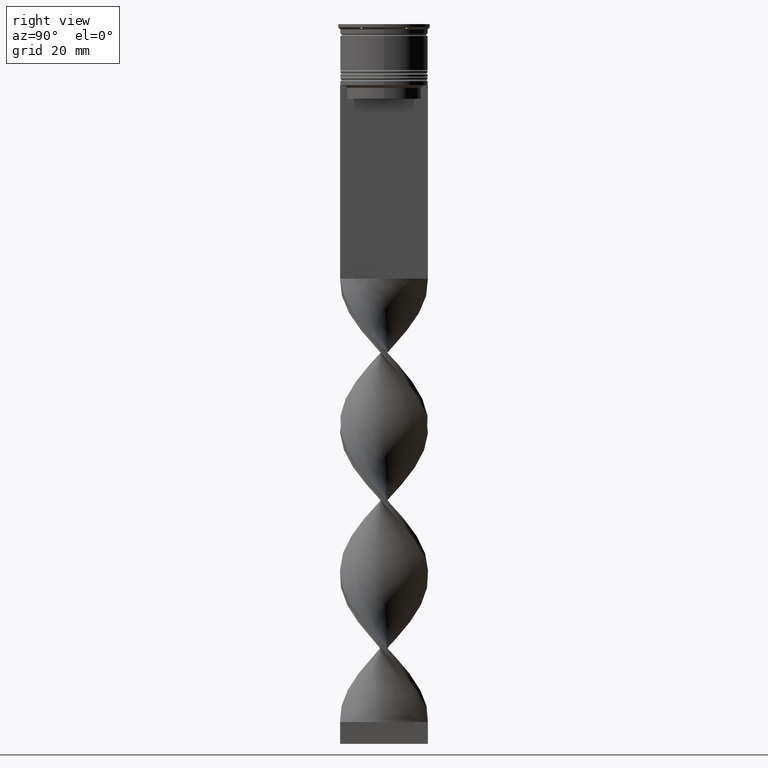
[diagram: clean part render]
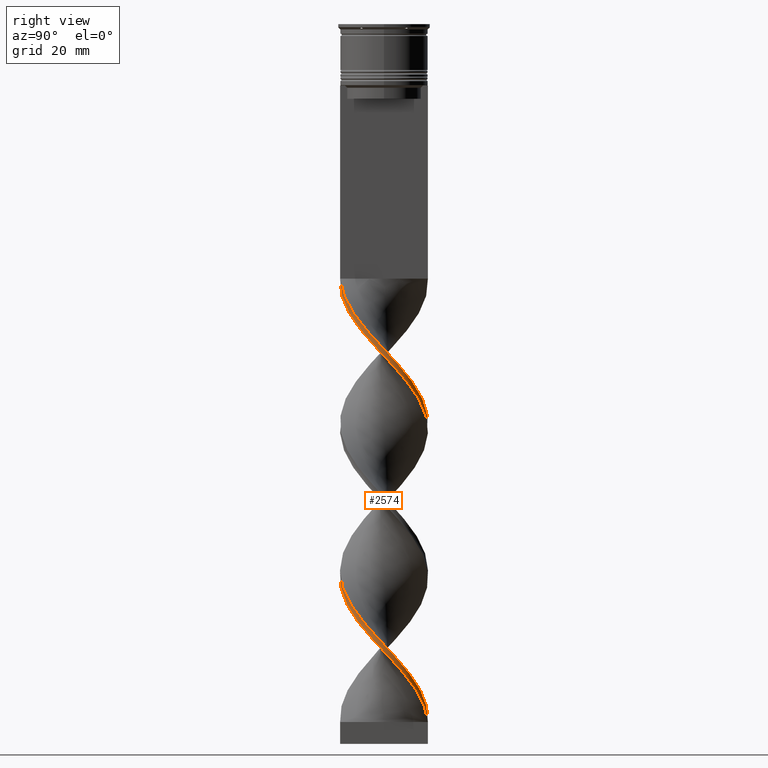
[diagram: same view with one face highlighted and labeled with its STEP entity id]
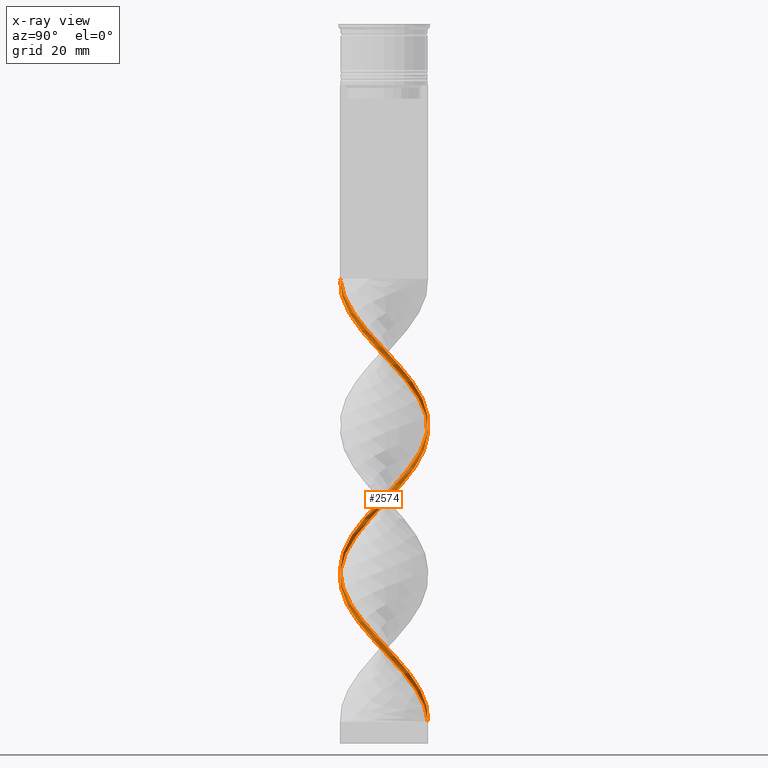
[diagram: x-ray of the same camera — body ghosted, the highlighted face saturated]
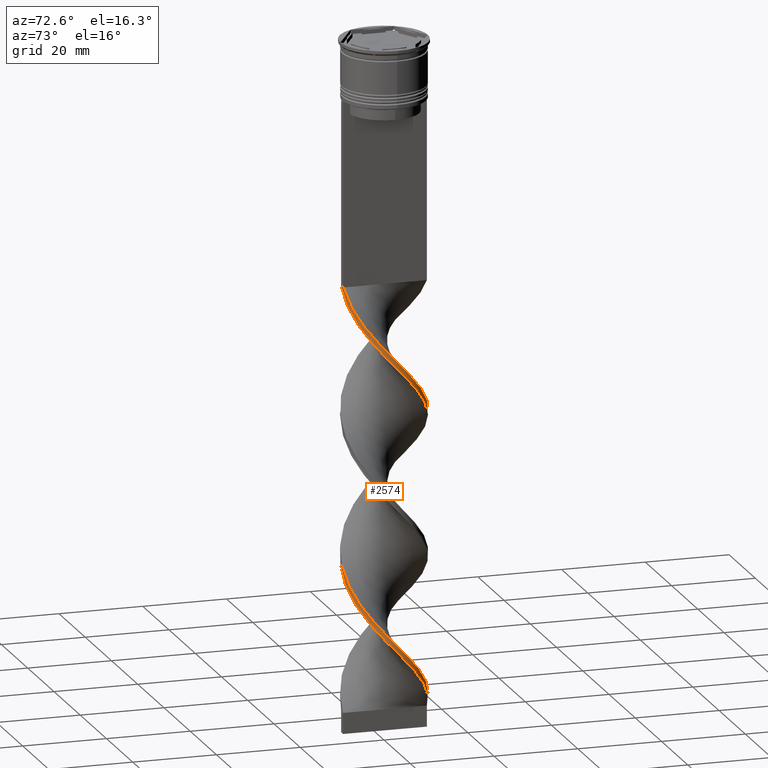
[diagram: same view with one face highlighted and labeled with its STEP entity id]
A machine part, right view. The second image highlights one B-rep face of the part: STEP entity #2574.
The next image is the same camera in x-ray: the body ghosted, the highlighted face saturated — about 1% of this face is hidden behind the body in this view.
A second angle (auxiliary view) of the same face is appended — the face is thin or edge-on in the first view.
In plain terms, the highlighted face is a freeform B-spline surface patch.
Its self-contained STEP definition (entity closure, byte-faithful):
#4 = CARTESIAN_POINT ( 'NONE',  ( -7.288592354231109738, 6.967770475720659107, -99.52222222222223991 ) ) ;
#13 = CARTESIAN_POINT ( 'NONE',  ( 9.992147806631789919, -1.352917631973299173, -72.58888888888890278 ) ) ;
#15 = CARTESIAN_POINT ( 'NONE',  ( 5.271089777143523669, -8.531008882968833973, -132.0666666666666629 ) ) ;
#24 = CARTESIAN_POINT ( 'NONE',  ( -10.02361530113348032, 0.2993932111503379012, -107.3777777777777942 ) ) ;
#35 = CARTESIAN_POINT ( 'NONE',  ( 5.680638183180777290, -8.330891533339590538, -130.9444444444444287 ) ) ;
#43 = CARTESIAN_POINT ( 'NONE',  ( -9.678562416828830450, -2.828220898732835220, -110.7444444444444542 ) ) ;
#52 = CARTESIAN_POINT ( 'NONE',  ( 0.3010423526567679309, 10.07882817644926376, -90.54444444444445139 ) ) ;
#54 = CARTESIAN_POINT ( 'NONE',  ( -8.578000064855068274, -5.300124413240421717, -115.2333333333333343 ) ) ;
#59 = CARTESIAN_POINT ( 'NONE',  ( 9.278802417170330941, 3.803462330970840632, -78.20000000000000284 ) ) ;
#73 = CARTESIAN_POINT ( 'NONE',  ( -1.345506207627245487, -9.937409775451381932, -123.0888888888888886 ) ) ;
#75 = CARTESIAN_POINT ( 'NONE',  ( -6.167734941832652140, 7.976995022925438050, -99.52222222222223991 ) ) ;
#85 = CARTESIAN_POINT ( 'NONE',  ( 7.933296209543089006, -6.133947444480539524, -66.97777777777777430 ) ) ;
#98 = CARTESIAN_POINT ( 'NONE',  ( -5.271089777143526334, -8.531008882968833973, -118.6000000000000085 ) ) ;
#100 = CARTESIAN_POINT ( 'NONE',  ( 10.05508279563516716, -0.7541312096726379144, -142.1666666666666856 ) ) ;
#120 = CARTESIAN_POINT ( 'NONE',  ( -3.382207337526049962, 9.440507058732864110, -96.15555555555556566 ) ) ;
#122 = CARTESIAN_POINT ( 'NONE',  ( 9.992147806631788143, -1.352917631973299173, -139.9222222222222172 ) ) ;
#125 = EDGE_CURVE ( 'NONE', #1130, #3033, #1598, .T. ) ;
#141 = CARTESIAN_POINT ( 'NONE',  ( -9.678562416828825121, 2.828220898732847211, -106.2555555555555742 ) ) ;
#167 = CARTESIAN_POINT ( 'NONE',  ( 0.7500000000000011102, 10.00000000000000533, -91.66666666666667140 ) ) ;
#171 = CARTESIAN_POINT ( 'NONE',  ( 2.812727608727948247, -9.625542239224740726, -127.5777777777777828 ) ) ;
#186 = CARTESIAN_POINT ( 'NONE',  ( -0.7499999999999988898, 10.00000000000000533, -159.0000000000000000 ) ) ;
#199 = CARTESIAN_POINT ( 'NONE',  ( 1.345506207627239936, -9.937409775451381932, -60.24444444444444713 ) ) ;
#218 = CARTESIAN_POINT ( 'NONE',  ( 10.05508279563516716, -0.7541312096726379144, -142.1666666666666856 ) ) ;
#222 = ORIENTED_EDGE ( 'NONE', *, *, #567, .T. ) ;
#224 = CARTESIAN_POINT ( 'NONE',  ( 0.7500000000000001110, -10.00000000000000533, -58.00000000000000000 ) ) ;
#251 = CARTESIAN_POINT ( 'NONE',  ( 5.271089777143525446, 8.531008882968833973, -152.2666666666666799 ) ) ;
#255 = CARTESIAN_POINT ( 'NONE',  ( 8.879042417511833207, -4.778703763208840272, -137.6777777777777487 ) ) ;
#266 = CARTESIAN_POINT ( 'NONE',  ( 7.691465658176951159, 6.520334342467823951, -148.8999999999999773 ) ) ;
#269 = ORIENTED_EDGE ( 'NONE', *, *, #2638, .T. ) ;
#271 = CARTESIAN_POINT ( 'NONE',  ( 9.742327908732752562, 2.376877556528110169, -145.5333333333333599 ) ) ;
#287 = CARTESIAN_POINT ( 'NONE',  ( 3.382207337526056179, 9.440507058732862333, -154.5111111111111200 ) ) ;
#296 = CARTESIAN_POINT ( 'NONE',  ( 10.02361530113347854, 0.2993932111503289084, -75.95555555555554861 ) ) ;
#299 = CARTESIAN_POINT ( 'NONE',  ( -9.992147806631788143, 1.352917631973302282, -106.2555555555555742 ) ) ;
#301 = CARTESIAN_POINT ( 'NONE',  ( 7.288592354231114179, 6.967770475720654666, -151.1444444444444457 ) ) ;
#311 = CARTESIAN_POINT ( 'NONE',  ( -6.929600300004805646, -7.248664682696627892, -116.3555555555555685 ) ) ;
#315 = CARTESIAN_POINT ( 'NONE',  ( 2.389970062597715383, -9.795991374453498324, -128.7000000000000171 ) ) ;
#322 = CARTESIAN_POINT ( 'NONE',  ( -6.484615268705943514, 7.649331004530123934, -98.40000000000001990 ) ) ;
#329 = CARTESIAN_POINT ( 'NONE',  ( 2.389970062597715383, -9.795991374453498324, -61.36666666666666003 ) ) ;
#332 = CARTESIAN_POINT ( 'NONE',  ( -9.278802417170330941, -3.803462330970838856, -111.8666666666666742 ) ) ;
#353 = CARTESIAN_POINT ( 'NONE',  ( -9.992147806631789919, 1.352917631973302282, -106.2555555555555742 ) ) ;
#356 = CARTESIAN_POINT ( 'NONE',  ( -9.742327908732752562, -2.376877556528108837, -111.8666666666666742 ) ) ;
#363 = CARTESIAN_POINT ( 'NONE',  ( 8.879042417511834984, 4.778703763208838495, -79.32222222222222285 ) ) ;
#374 = CARTESIAN_POINT ( 'NONE',  ( -2.389970062597717604, -9.795991374453498324, -121.9666666666666544 ) ) ;
#377 = CARTESIAN_POINT ( 'NONE',  ( -8.879042417511829655, 4.778703763208845601, -104.0111111111111057 ) ) ;
#396 = CARTESIAN_POINT ( 'NONE',  ( 2.389970062597715827, 9.795991374453498324, -88.29999999999998295 ) ) ;
#421 = CARTESIAN_POINT ( 'NONE',  ( 5.680638183180779954, 8.330891533339588761, -86.05555555555557135 ) ) ;
#438 = CARTESIAN_POINT ( 'NONE',  ( -9.278802417170329164, 3.803462330970842409, -105.1333333333333400 ) ) ;
#460 = CARTESIAN_POINT ( 'NONE',  ( -4.374444612454388981, 9.085022743012231672, -97.27777777777778567 ) ) ;
#478 = VERTEX_POINT ( 'NONE', #3080 ) ;
#480 = CARTESIAN_POINT ( 'NONE',  ( 4.374444612454393422, 9.085022743012228119, -153.3888888888889142 ) ) ;
#484 = CARTESIAN_POINT ( 'NONE',  ( -6.929600300004805646, -7.248664682696627892, -116.3555555555555685 ) ) ;
#498 = CARTESIAN_POINT ( 'NONE',  ( 7.691465658176951159, -6.520334342467825728, -135.4333333333333371 ) ) ;
#500 = CARTESIAN_POINT ( 'NONE',  ( 9.678562416828825121, -2.828220898732843658, -72.58888888888890278 ) ) ;
#512 = CARTESIAN_POINT ( 'NONE',  ( 9.492508010833715204, 3.400837481082922498, -146.6555555555555657 ) ) ;
#541 = CARTESIAN_POINT ( 'NONE',  ( 8.578000064855068274, -5.300124413240424381, -68.10000000000002274 ) ) ;
#558 = CARTESIAN_POINT ( 'NONE',  ( -8.578000064855068274, -5.300124413240421717, -115.2333333333333343 ) ) ;
#567 = EDGE_CURVE ( 'NONE', #2487, #3033, #1538, .T. ) ;
#569 = CARTESIAN_POINT ( 'NONE',  ( -7.691465658176951159, -6.520334342467823063, -115.2333333333333343 ) ) ;
#571 = CARTESIAN_POINT ( 'NONE',  ( 3.824412864799132006, -9.329912654898734559, -61.36666666666666003 ) ) ;
#575 = CARTESIAN_POINT ( 'NONE',  ( -4.752525523989961087, -8.830402094119159884, -120.8444444444444485 ) ) ;
#592 = CARTESIAN_POINT ( 'NONE',  ( -1.801042352656773593, -9.921171823550746893, -124.2111111111111370 ) ) ;
#600 = CARTESIAN_POINT ( 'NONE',  ( 8.879042417511833207, -4.778703763208840272, -70.34444444444444855 ) ) ;
#607 = CARTESIAN_POINT ( 'NONE',  ( 5.680638183180779954, 8.330891533339588761, -153.3888888888889142 ) ) ;
#608 = CARTESIAN_POINT ( 'NONE',  ( 4.374444612454394310, 9.085022743012228119, -153.3888888888889142 ) ) ;
#617 = FACE_OUTER_BOUND ( 'NONE', #1523, .T. ) ;
#621 = CARTESIAN_POINT ( 'NONE',  ( 1.345506207627239936, -9.937409775451381932, -127.5777777777777828 ) ) ;
#626 = CARTESIAN_POINT ( 'NONE',  ( 0.3010423526567678754, 10.07882817644926376, -90.54444444444445139 ) ) ;
#637 = EDGE_CURVE ( 'NONE', #478, #1130, #3046, .T. ) ;
#638 = CARTESIAN_POINT ( 'NONE',  ( -1.801042352656761159, 9.921171823550748670, -92.78888888888889142 ) ) ;
#641 = CARTESIAN_POINT ( 'NONE',  ( -10.05508279563516716, 0.7541312096726390246, -108.5000000000000000 ) ) ;
#648 = CARTESIAN_POINT ( 'NONE',  ( 6.929600300004804758, 7.248664682696628780, -82.68888888888889710 ) ) ;
#655 = CARTESIAN_POINT ( 'NONE',  ( 6.929600300004801205, -7.248664682696631445, -66.97777777777777430 ) ) ;
#657 = CARTESIAN_POINT ( 'NONE',  ( -2.812727608727946027, 9.625542239224740726, -93.91111111111111143 ) ) ;
#661 = CARTESIAN_POINT ( 'NONE',  ( -0.3010423526567608810, 10.07882817644926554, -92.78888888888889142 ) ) ;
#682 = CARTESIAN_POINT ( 'NONE',  ( 10.05508279563516716, 0.7541312096726368042, -74.83333333333334281 ) ) ;
#685 = CARTESIAN_POINT ( 'NONE',  ( -3.382207337526049962, 9.440507058732864110, -96.15555555555556566 ) ) ;
#705 = CARTESIAN_POINT ( 'NONE',  ( -10.05508279563516716, -0.7541312096726356939, -108.5000000000000000 ) ) ;
#725 = CARTESIAN_POINT ( 'NONE',  ( 9.492508010833715204, 3.400837481082922498, -79.32222222222222285 ) ) ;
#750 = CARTESIAN_POINT ( 'NONE',  ( 5.271089777143525446, 8.531008882968833973, -152.2666666666666799 ) ) ;
#766 = CARTESIAN_POINT ( 'NONE',  ( 3.824412864799132450, 9.329912654898736335, -88.29999999999998295 ) ) ;
#784 = CARTESIAN_POINT ( 'NONE',  ( -10.02361530113347854, -0.2993932111503254112, -109.6222222222222342 ) ) ;
#801 = CARTESIAN_POINT ( 'NONE',  ( 0.2500000000000011102, 10.00000000000000533, -159.0000000000000000 ) ) ;
#806 = CARTESIAN_POINT ( 'NONE',  ( 7.691465658176951159, -6.520334342467825728, -68.10000000000002274 ) ) ;
#822 = CARTESIAN_POINT ( 'NONE',  ( 9.678562416828826898, -2.828220898732844102, -139.9222222222222172 ) ) ;
#823 = CARTESIAN_POINT ( 'NONE',  ( 9.678562416828825121, -2.828220898732843658, -139.9222222222222172 ) ) ;
#826 = CARTESIAN_POINT ( 'NONE',  ( -2.389970062597717604, -9.795991374453498324, -121.9666666666666544 ) ) ;
#837 = CARTESIAN_POINT ( 'NONE',  ( 3.824412864799132450, 9.329912654898736335, -155.6333333333333258 ) ) ;
#861 = CARTESIAN_POINT ( 'NONE',  ( -5.680638183180781731, -8.330891533339586985, -119.7222222222222143 ) ) ;
#877 = CARTESIAN_POINT ( 'NONE',  ( 0.7500000000000001110, -10.00000000000000533, -58.00000000000000000 ) ) ;
#896 = CARTESIAN_POINT ( 'NONE',  ( 3.382207337526053514, -9.440507058732864110, -129.8222222222222229 ) ) ;
#908 = CARTESIAN_POINT ( 'NONE',  ( 9.678562416828828674, 2.828220898732840993, -144.4111111111111256 ) ) ;
#920 = CARTESIAN_POINT ( 'NONE',  ( -2.812727608727953577, -9.625542239224740726, -123.0888888888888886 ) ) ;
#927 = CARTESIAN_POINT ( 'NONE',  ( 6.167734941832656581, 7.976995022925434498, -83.81111111111111711 ) ) ;
#929 = CARTESIAN_POINT ( 'NONE',  ( 6.484615268705946178, 7.649331004530122158, -152.2666666666666799 ) ) ;
#938 = CARTESIAN_POINT ( 'NONE',  ( -6.167734941832660134, -7.976995022925430945, -117.4777777777777885 ) ) ;
#941 = CARTESIAN_POINT ( 'NONE',  ( 9.992147806631788143, 1.352917631973295620, -77.07777777777778283 ) ) ;
#946 = CARTESIAN_POINT ( 'NONE',  ( 8.285254037844390851, 5.649519052838329891, -80.44444444444445708 ) ) ;
#955 = CARTESIAN_POINT ( 'NONE',  ( 8.578000064855068274, -5.300124413240424381, -135.4333333333333371 ) ) ;
#957 = CARTESIAN_POINT ( 'NONE',  ( 9.742327908732752562, 2.376877556528110169, -78.20000000000000284 ) ) ;
#963 = CARTESIAN_POINT ( 'NONE',  ( -8.578000064855068274, 5.300124413240425270, -101.7666666666666515 ) ) ;
#973 = CARTESIAN_POINT ( 'NONE',  ( -4.752525523989951317, 8.830402094119165213, -96.15555555555556566 ) ) ;
#976 = CARTESIAN_POINT ( 'NONE',  ( 5.680638183180779954, 8.330891533339588761, -86.05555555555557135 ) ) ;
#1000 = CARTESIAN_POINT ( 'NONE',  ( 9.278802417170330941, 3.803462330970840632, -78.20000000000000284 ) ) ;
#1010 = CARTESIAN_POINT ( 'NONE',  ( 9.035254037844390851, -4.350480947161673662, -69.22222222222222854 ) ) ;
#1021 = CARTESIAN_POINT ( 'NONE',  ( 3.824412864799132006, -9.329912654898736335, -128.6999999999999886 ) ) ;
#1039 = CARTESIAN_POINT ( 'NONE',  ( 10.02361530113347854, 0.2993932111503289084, -75.95555555555554861 ) ) ;
#1061 = CARTESIAN_POINT ( 'NONE',  ( 8.879042417511833207, -4.778703763208840272, -70.34444444444443434 ) ) ;
#1079 = CARTESIAN_POINT ( 'NONE',  ( -2.389970062597714495, 9.795991374453500100, -95.03333333333331723 ) ) ;
#1096 = CARTESIAN_POINT ( 'NONE',  ( 5.271089777143523669, -8.531008882968833973, -64.73333333333333428 ) ) ;
#1114 = CARTESIAN_POINT ( 'NONE',  ( 9.742327908732752562, 2.376877556528110169, -145.5333333333333599 ) ) ;
#1117 = CARTESIAN_POINT ( 'NONE',  ( 8.879042417511834984, 4.778703763208838495, -146.6555555555555657 ) ) ;
#1130 = VERTEX_POINT ( 'NONE', #1363 ) ;
#1131 = CARTESIAN_POINT ( 'NONE',  ( 9.992147806631789919, 1.352917631973295842, -144.4111111111111541 ) ) ;
#1144 = CARTESIAN_POINT ( 'NONE',  ( -8.285254037844394404, -5.649519052838325450, -114.1111111111111285 ) ) ;
#1152 = CARTESIAN_POINT ( 'NONE',  ( 5.271089777143523669, -8.531008882968833973, -132.0666666666666629 ) ) ;
#1155 = CARTESIAN_POINT ( 'NONE',  ( -0.7499999999999998890, -10.00000000000000533, -58.00000000000000000 ) ) ;
#1172 = CARTESIAN_POINT ( 'NONE',  ( 9.035254037844392627, 4.350480947161671885, -147.7777777777777715 ) ) ;
#1176 = CARTESIAN_POINT ( 'NONE',  ( 3.824412864799132006, -9.329912654898736335, -61.36666666666666003 ) ) ;
#1189 = CARTESIAN_POINT ( 'NONE',  ( 0.7500000000000011102, 10.00000000000000533, -159.0000000000000000 ) ) ;
#1194 = CARTESIAN_POINT ( 'NONE',  ( 9.492508010833715204, -3.400837481082924718, -137.6777777777777487 ) ) ;
#1201 = CARTESIAN_POINT ( 'NONE',  ( 3.824412864799132450, 9.329912654898734559, -155.6333333333333542 ) ) ;
#1202 = CARTESIAN_POINT ( 'NONE',  ( 9.866822606231998805, 1.791176054202738843, -143.2888888888889198 ) ) ;
#1206 = CARTESIAN_POINT ( 'NONE',  ( -9.035254037844394404, -4.350480947161666556, -114.1111111111111285 ) ) ;
#1214 = CARTESIAN_POINT ( 'NONE',  ( -4.752525523989961087, -8.830402094119159884, -120.8444444444444485 ) ) ;
#1232 = CARTESIAN_POINT ( 'NONE',  ( 9.035254037844390851, -4.350480947161673662, -69.22222222222222854 ) ) ;
#1235 = CARTESIAN_POINT ( 'NONE',  ( 6.484615268705946178, 7.649331004530122158, -84.93333333333333712 ) ) ;
#1253 = CARTESIAN_POINT ( 'NONE',  ( 6.484615268705944402, -7.649331004530123934, -132.0666666666666629 ) ) ;
#1255 = CARTESIAN_POINT ( 'NONE',  ( -5.271089777143522781, 8.531008882968833973, -98.40000000000001990 ) ) ;
#1260 = CARTESIAN_POINT ( 'NONE',  ( -9.278802417170330941, -3.803462330970838856, -111.8666666666666742 ) ) ;
#1270 = CARTESIAN_POINT ( 'NONE',  ( -9.742327908732750785, 2.376877556528111946, -105.1333333333333400 ) ) ;
#1272 = CARTESIAN_POINT ( 'NONE',  ( 3.824412864799132450, 9.329912654898734559, -88.29999999999998295 ) ) ;
#1278 = CARTESIAN_POINT ( 'NONE',  ( -9.742327908732750785, 2.376877556528111946, -105.1333333333333400 ) ) ;
#1290 = CARTESIAN_POINT ( 'NONE',  ( 1.801042352656765155, -9.921171823550746893, -126.4555555555555628 ) ) ;
#1292 = CARTESIAN_POINT ( 'NONE',  ( 8.285254037844389075, -5.649519052838332556, -69.22222222222222854 ) ) ;
#1305 = CARTESIAN_POINT ( 'NONE',  ( 8.578000064855070050, -5.300124413240424381, -68.10000000000000853 ) ) ;
#1315 = CARTESIAN_POINT ( 'NONE',  ( -4.374444612454396086, -9.085022743012226343, -119.7222222222222143 ) ) ;
#1333 = CARTESIAN_POINT ( 'NONE',  ( -6.929600300004800317, 7.248664682696634110, -100.6444444444444599 ) ) ;
#1347 = CARTESIAN_POINT ( 'NONE',  ( -0.7499999999999988898, 10.00000000000000533, -159.0000000000000000 ) ) ;
#1351 = CARTESIAN_POINT ( 'NONE',  ( 9.866822606231998805, 1.791176054202738843, -143.2888888888889198 ) ) ;
#1363 = CARTESIAN_POINT ( 'NONE',  ( -0.7499999999999988898, 10.00000000000000533, -159.0000000000000000 ) ) ;
#1376 = CARTESIAN_POINT ( 'NONE',  ( -0.3010423526567608810, 10.07882817644926554, -92.78888888888889142 ) ) ;
#1380 = CARTESIAN_POINT ( 'NONE',  ( 5.680638183180777290, -8.330891533339590538, -130.9444444444444571 ) ) ;
#1396 = CARTESIAN_POINT ( 'NONE',  ( 3.382207337526053514, -9.440507058732864110, -62.48888888888889426 ) ) ;
#1403 = CARTESIAN_POINT ( 'NONE',  ( 0.7500000000000011102, 10.00000000000000533, -159.0000000000000000 ) ) ;
#1410 = CARTESIAN_POINT ( 'NONE',  ( 9.992147806631789919, 1.352917631973295842, -77.07777777777778283 ) ) ;
#1413 = CARTESIAN_POINT ( 'NONE',  ( 4.752525523989954870, -8.830402094119163436, -129.8222222222222229 ) ) ;
#1429 = CARTESIAN_POINT ( 'NONE',  ( 2.812727608727952688, 9.625542239224740726, -156.7555555555555600 ) ) ;
#1433 = CARTESIAN_POINT ( 'NONE',  ( 1.801042352656765155, -9.921171823550746893, -59.12222222222222712 ) ) ;
#1443 = CARTESIAN_POINT ( 'NONE',  ( 2.812727608727952688, 9.625542239224740726, -156.7555555555555600 ) ) ;
#1459 = CARTESIAN_POINT ( 'NONE',  ( 7.933296209543092559, 6.133947444480536859, -150.0222222222222115 ) ) ;
#1479 = CARTESIAN_POINT ( 'NONE',  ( 9.278802417170329164, -3.803462330970841521, -138.8000000000000114 ) ) ;
#1491 = CARTESIAN_POINT ( 'NONE',  ( 9.035254037844392627, 4.350480947161671885, -147.7777777777777715 ) ) ;
#1496 = CARTESIAN_POINT ( 'NONE',  ( -7.288592354231117731, -6.967770475720651113, -117.4777777777777885 ) ) ;
#1503 = CARTESIAN_POINT ( 'NONE',  ( 9.678562416828826898, -2.828220898732844102, -72.58888888888890278 ) ) ;
#1517 = CARTESIAN_POINT ( 'NONE',  ( 4.752525523989954870, -8.830402094119163436, -129.8222222222222229 ) ) ;
#1522 = CARTESIAN_POINT ( 'NONE',  ( 3.382207337526053514, -9.440507058732864110, -129.8222222222222229 ) ) ;
#1523 = EDGE_LOOP ( 'NONE', ( #269, #222, #2062, #2049 ) ) ;
#1528 = CARTESIAN_POINT ( 'NONE',  ( -9.035254037844390851, 4.350480947161678102, -102.8888888888888857 ) ) ;
#1538 =( BOUNDED_CURVE ( )  B_SPLINE_CURVE ( 2, ( #3653, #1834, #3057, #329, #2473, #2165, #3674, #3371, #655, #1856, #1292, #600, #1544, #1503, #3721, #3399, #296, #941, #957, #2477, #3105, #1822, #3314, #3356, #1235, #976, #1585, #1272, #2195, #1863, #2524, #661, #3377, #3087, #685, #2773, #1255, #75, #3678, #1884, #2130, #377, #3043, #3025, #2172, #641, #1840, #3695, #356, #2815, #2438, #54, #1802, #1566, #2732, #3933, #1214, #3633, #920, #2791, #2499, #3339, #621, #315, #1522, #2750, #15, #2460, #2151, #498, #3761, #2314, #1903, #822, #2235, #100, #3516, #2634, #1114, #512, #1491, #2058, #2115, #301, #929, #607, #2446, #1201, #1443, #2424, #2721 ),
 .UNSPECIFIED., .F., .T. ) 
 B_SPLINE_CURVE_WITH_KNOTS ( ( 3, 2, 2, 2, 2, 2, 2, 2, 2, 2, 2, 2, 2, 2, 2, 2, 2, 2, 2, 2, 2, 2, 2, 2, 2, 2, 2, 2, 2, 2, 2, 2, 2, 2, 2, 2, 2, 2, 2, 2, 2, 2, 2, 2, 2, 3 ),
 ( 0.000000000000000000, 0.01666666666666666644, 0.03333333333333333287, 0.05000000000000000971, 0.06666666666666666574, 0.08333333333333332871, 0.1000000000000000194, 0.1166666666666666546, 0.1333333333333333315, 0.1499999999999999944, 0.1666666666666666574, 0.1833333333333333204, 0.2000000000000000389, 0.2166666666666666741, 0.2333333333333333093, 0.2500000000000000000, 0.2666666666666666630, 0.2833333333333333259, 0.2999999999999999889, 0.3166666666666666519, 0.3333333333333333148, 0.3499999999999999223, 0.3666666666666666408, 0.3833333333333333592, 0.4000000000000000777, 0.4166666666666666852, 0.4333333333333333481, 0.4500000000000000111, 0.4666666666666666186, 0.4833333333333333370, 0.5000000000000000000, 0.5166666666666667185, 0.5333333333333333259, 0.5500000000000000444, 0.5666666666666666519, 0.5833333333333333703, 0.5999999999999999778, 0.6166666666666666963, 0.6333333333333333037, 0.6500000000000000222, 0.6666666666666666297, 0.6833333333333332371, 0.6999999999999998446, 0.7166666666666666741, 0.7333333333333332815, 0.7500000000000000000 ),
 .UNSPECIFIED. ) 
 CURVE ( )  GEOMETRIC_REPRESENTATION_ITEM ( )  RATIONAL_B_SPLINE_CURVE ( ( 1.000000000000000000, 0.9945218953682732899, 1.000000000000000000, 0.9945218953682732899, 1.000000000000000000, 0.9945218953682732899, 1.000000000000000000, 0.9945218953682732899, 1.000000000000000000, 0.9945218953682732899, 1.000000000000000000, 0.9945218953682732899, 1.000000000000000000, 0.9945218953682732899, 1.000000000000000000, 0.9945218953682732899, 1.000000000000000000, 0.9945218953682732899, 1.000000000000000000, 0.9945218953682732899, 1.000000000000000000, 0.9945218953682732899, 1.000000000000000000, 0.9945218953682732899, 1.000000000000000000, 0.9945218953682732899, 1.000000000000000000, 0.9945218953682732899, 1.000000000000000000, 0.9945218953682732899, 1.000000000000000000, 0.9945218953682732899, 1.000000000000000000, 0.9945218953682732899, 1.000000000000000000, 0.9945218953682732899, 1.000000000000000000, 0.9945218953682732899, 1.000000000000000000, 0.9945218953682732899, 1.000000000000000000, 0.9945218953682732899, 1.000000000000000000, 0.9945218953682732899, 1.000000000000000000, 0.9945218953682732899, 1.000000000000000000, 0.9945218953682732899, 1.000000000000000000, 0.9945218953682732899, 1.000000000000000000, 0.9945218953682732899, 1.000000000000000000, 0.9945218953682732899, 1.000000000000000000, 0.9945218953682732899, 1.000000000000000000, 0.9945218953682732899, 1.000000000000000000, 0.9945218953682732899, 1.000000000000000000, 0.9945218953682732899, 1.000000000000000000, 0.9945218953682732899, 1.000000000000000000, 0.9945218953682732899, 1.000000000000000000, 0.9945218953682732899, 1.000000000000000000, 0.9945218953682732899, 1.000000000000000000, 0.9945218953682732899, 1.000000000000000000, 0.9945218953682732899, 1.000000000000000000, 0.9945218953682732899, 1.000000000000000000, 0.9945218953682732899, 1.000000000000000000, 0.9945218953682732899, 1.000000000000000000, 0.9945218953682732899, 1.000000000000000000, 0.9945218953682732899, 1.000000000000000000, 0.9945218953682732899, 1.000000000000000000, 0.9945218953682732899, 1.000000000000000000, 0.9945218953682732899, 1.000000000000000000 ) ) 
 REPRESENTATION_ITEM ( '' )  );
#1540 = CARTESIAN_POINT ( 'NONE',  ( -9.035254037844390851, 4.350480947161678102, -102.8888888888888857 ) ) ;
#1544 = CARTESIAN_POINT ( 'NONE',  ( 9.278802417170329164, -3.803462330970841521, -71.46666666666668277 ) ) ;
#1553 = CARTESIAN_POINT ( 'NONE',  ( 5.271089777143525446, 8.531008882968833973, -84.93333333333333712 ) ) ;
#1555 = CARTESIAN_POINT ( 'NONE',  ( 9.742327908732750785, -2.376877556528111057, -71.46666666666668277 ) ) ;
#1563 = CARTESIAN_POINT ( 'NONE',  ( 9.742327908732750785, -2.376877556528111057, -138.8000000000000114 ) ) ;
#1566 = CARTESIAN_POINT ( 'NONE',  ( -7.288592354231117731, -6.967770475720650225, -117.4777777777777885 ) ) ;
#1572 = CARTESIAN_POINT ( 'NONE',  ( -2.812727608727946027, 9.625542239224740726, -93.91111111111111143 ) ) ;
#1574 = CARTESIAN_POINT ( 'NONE',  ( 10.05508279563516716, 0.7541312096726368042, -74.83333333333332860 ) ) ;
#1583 = CARTESIAN_POINT ( 'NONE',  ( -0.3010423526567735375, -10.07882817644926376, -124.2111111111111370 ) ) ;
#1585 = CARTESIAN_POINT ( 'NONE',  ( 4.752525523989956646, 8.830402094119161660, -87.17777777777779136 ) ) ;
#1587 = CARTESIAN_POINT ( 'NONE',  ( 8.578000064855070050, -5.300124413240424381, -135.4333333333333371 ) ) ;
#1598 = B_SPLINE_CURVE_WITH_KNOTS ( 'NONE', 3,
 ( #1347, #2311, #801, #1700 ),
 .UNSPECIFIED., .F., .F.,
 ( 4, 4 ),
 ( 0.000000000000000000, 1.000000000000000000 ),
 .UNSPECIFIED. ) ;
#1606 = CARTESIAN_POINT ( 'NONE',  ( -8.578000064855068274, 5.300124413240425270, -101.7666666666666515 ) ) ;
#1626 = CARTESIAN_POINT ( 'NONE',  ( 4.752525523989956646, 8.830402094119161660, -87.17777777777779136 ) ) ;
#1643 = CARTESIAN_POINT ( 'NONE',  ( 9.678562416828826898, 2.828220898732840549, -144.4111111111111541 ) ) ;
#1664 = CARTESIAN_POINT ( 'NONE',  ( -7.691465658176949383, 6.520334342467825728, -101.7666666666666515 ) ) ;
#1668 = CARTESIAN_POINT ( 'NONE',  ( 0.7500000000000001110, -10.00000000000000533, -125.3333333333333570 ) ) ;
#1691 = CARTESIAN_POINT ( 'NONE',  ( 3.382207337526056179, 9.440507058732862333, -154.5111111111111200 ) ) ;
#1700 = CARTESIAN_POINT ( 'NONE',  ( 0.7500000000000011102, 10.00000000000000533, -159.0000000000000000 ) ) ;
#1704 = CARTESIAN_POINT ( 'NONE',  ( 9.035254037844392627, 4.350480947161671885, -80.44444444444445708 ) ) ;
#1707 = CARTESIAN_POINT ( 'NONE',  ( -1.345506207627245487, -9.937409775451381932, -123.0888888888888886 ) ) ;
#1719 = CARTESIAN_POINT ( 'NONE',  ( 4.374444612454390757, -9.085022743012229895, -130.9444444444444287 ) ) ;
#1739 = CARTESIAN_POINT ( 'NONE',  ( -6.484615268705947067, -7.649331004530122158, -118.6000000000000085 ) ) ;
#1757 = CARTESIAN_POINT ( 'NONE',  ( 8.578000064855068274, 5.300124413240422605, -148.8999999999999488 ) ) ;
#1771 = CARTESIAN_POINT ( 'NONE',  ( 4.752525523989954870, -8.830402094119163436, -62.48888888888889426 ) ) ;
#1775 = CARTESIAN_POINT ( 'NONE',  ( -9.492508010833716980, -3.400837481082918501, -112.9888888888888943 ) ) ;
#1794 = CARTESIAN_POINT ( 'NONE',  ( 7.691465658176951159, -6.520334342467825728, -135.4333333333333371 ) ) ;
#1802 = CARTESIAN_POINT ( 'NONE',  ( -7.933296209543092559, -6.133947444480535971, -116.3555555555555685 ) ) ;
#1807 = CARTESIAN_POINT ( 'NONE',  ( 1.345506207627244155, 9.937409775451381932, -156.7555555555555600 ) ) ;
#1818 = CARTESIAN_POINT ( 'NONE',  ( 6.929600300004804758, 7.248664682696628780, -82.68888888888889710 ) ) ;
#1822 = CARTESIAN_POINT ( 'NONE',  ( 8.578000064855070050, 5.300124413240422605, -81.56666666666666288 ) ) ;
#1827 = CARTESIAN_POINT ( 'NONE',  ( -0.7499999999999988898, 10.00000000000000533, -91.66666666666667140 ) ) ;
#1834 = CARTESIAN_POINT ( 'NONE',  ( 0.3010423526567652663, -10.07882817644926376, -59.12222222222222712 ) ) ;
#1837 = CARTESIAN_POINT ( 'NONE',  ( -3.824412864799130674, 9.329912654898738111, -95.03333333333331723 ) ) ;
#1840 = CARTESIAN_POINT ( 'NONE',  ( -10.02361530113347854, -0.2993932111503254112, -109.6222222222222342 ) ) ;
#1847 = CARTESIAN_POINT ( 'NONE',  ( -3.824412864799130674, 9.329912654898736335, -95.03333333333331723 ) ) ;
#1856 = CARTESIAN_POINT ( 'NONE',  ( 7.691465658176951159, -6.520334342467825728, -68.10000000000000853 ) ) ;
#1859 = CARTESIAN_POINT ( 'NONE',  ( 9.492508010833713428, -3.400837481082924718, -137.6777777777777487 ) ) ;
#1863 = CARTESIAN_POINT ( 'NONE',  ( 1.801042352656767820, 9.921171823550748670, -90.54444444444445139 ) ) ;
#1871 = CARTESIAN_POINT ( 'NONE',  ( -9.492508010833711651, 3.400837481082930491, -104.0111111111111057 ) ) ;
#1873 = CARTESIAN_POINT ( 'NONE',  ( 6.484615268705944402, -7.649331004530123934, -64.73333333333333428 ) ) ;
#1882 = CARTESIAN_POINT ( 'NONE',  ( -7.288592354231109738, 6.967770475720659107, -99.52222222222223991 ) ) ;
#1884 = CARTESIAN_POINT ( 'NONE',  ( -7.691465658176949383, 6.520334342467825728, -101.7666666666666515 ) ) ;
#1886 = CARTESIAN_POINT ( 'NONE',  ( 7.288592354231111514, -6.967770475720657330, -133.1888888888889255 ) ) ;
#1901 = CARTESIAN_POINT ( 'NONE',  ( -9.678562416828828674, -2.828220898732835220, -110.7444444444444542 ) ) ;
#1903 = CARTESIAN_POINT ( 'NONE',  ( 9.278802417170329164, -3.803462330970841521, -138.8000000000000114 ) ) ;
#1925 = CARTESIAN_POINT ( 'NONE',  ( 7.933296209543092559, 6.133947444480536859, -82.68888888888889710 ) ) ;
#1947 = CARTESIAN_POINT ( 'NONE',  ( 6.929600300004801205, -7.248664682696631445, -66.97777777777777430 ) ) ;
#1967 = CARTESIAN_POINT ( 'NONE',  ( -6.167734941832652140, 7.976995022925438050, -99.52222222222223991 ) ) ;
#1991 = CARTESIAN_POINT ( 'NONE',  ( 8.285254037844390851, 5.649519052838329891, -147.7777777777777715 ) ) ;
#2012 = CARTESIAN_POINT ( 'NONE',  ( 8.285254037844389075, -5.649519052838332556, -69.22222222222222854 ) ) ;
#2027 = CARTESIAN_POINT ( 'NONE',  ( 9.866822606231998805, -1.791176054202742174, -141.0444444444444514 ) ) ;
#2031 = CARTESIAN_POINT ( 'NONE',  ( -5.271089777143526334, -8.531008882968833973, -118.6000000000000085 ) ) ;
#2046 = CARTESIAN_POINT ( 'NONE',  ( 7.288592354231111514, -6.967770475720657330, -65.85555555555555429 ) ) ;
#2049 = ORIENTED_EDGE ( 'NONE', *, *, #637, .F. ) ;
#2058 = CARTESIAN_POINT ( 'NONE',  ( 8.578000064855070050, 5.300124413240422605, -148.8999999999999773 ) ) ;
#2062 = ORIENTED_EDGE ( 'NONE', *, *, #125, .F. ) ;
#2079 = CARTESIAN_POINT ( 'NONE',  ( 1.801042352656765155, -9.921171823550748670, -59.12222222222222712 ) ) ;
#2083 = CARTESIAN_POINT ( 'NONE',  ( -9.742327908732752562, -2.376877556528108837, -111.8666666666666742 ) ) ;
#2102 = CARTESIAN_POINT ( 'NONE',  ( -0.7499999999999998890, -10.00000000000000533, -125.3333333333333570 ) ) ;
#2115 = CARTESIAN_POINT ( 'NONE',  ( 7.933296209543092559, 6.133947444480536859, -150.0222222222222115 ) ) ;
#2116 = CARTESIAN_POINT ( 'NONE',  ( 8.285254037844390851, 5.649519052838329891, -147.7777777777777715 ) ) ;
#2130 = CARTESIAN_POINT ( 'NONE',  ( -8.285254037844389075, 5.649519052838336108, -102.8888888888888857 ) ) ;
#2135 = CARTESIAN_POINT ( 'NONE',  ( 9.866822606231998805, 1.791176054202738843, -75.95555555555554861 ) ) ;
#2138 = CARTESIAN_POINT ( 'NONE',  ( 2.389970062597715827, 9.795991374453498324, -155.6333333333333542 ) ) ;
#2148 = CARTESIAN_POINT ( 'NONE',  ( 5.271089777143525446, 8.531008882968833973, -84.93333333333333712 ) ) ;
#2151 = CARTESIAN_POINT ( 'NONE',  ( 6.929600300004801205, -7.248664682696631445, -134.3111111111111313 ) ) ;
#2157 = CARTESIAN_POINT ( 'NONE',  ( 7.691465658176951159, 6.520334342467823951, -81.56666666666666288 ) ) ;
#2165 = CARTESIAN_POINT ( 'NONE',  ( 4.374444612454390757, -9.085022743012229895, -63.61111111111112137 ) ) ;
#2169 = CARTESIAN_POINT ( 'NONE',  ( 9.035254037844390851, -4.350480947161673662, -136.5555555555555713 ) ) ;
#2172 = CARTESIAN_POINT ( 'NONE',  ( -9.866822606231997028, 1.791176054202747725, -107.3777777777777942 ) ) ;
#2178 = CARTESIAN_POINT ( 'NONE',  ( 1.345506207627244155, 9.937409775451381932, -89.42222222222223138 ) ) ;
#2190 = CARTESIAN_POINT ( 'NONE',  ( 9.866822606231998805, 1.791176054202738843, -75.95555555555554861 ) ) ;
#2195 = CARTESIAN_POINT ( 'NONE',  ( 2.812727608727952688, 9.625542239224740726, -89.42222222222223138 ) ) ;
#2214 = CARTESIAN_POINT ( 'NONE',  ( -8.879042417511836760, -4.778703763208835831, -112.9888888888888943 ) ) ;
#2233 = CARTESIAN_POINT ( 'NONE',  ( -8.285254037844394404, -5.649519052838325450, -114.1111111111111285 ) ) ;
#2235 = CARTESIAN_POINT ( 'NONE',  ( 9.866822606231998805, -1.791176054202742174, -141.0444444444444514 ) ) ;
#2253 = CARTESIAN_POINT ( 'NONE',  ( 7.691465658176951159, 6.520334342467823951, -148.8999999999999488 ) ) ;
#2276 = CARTESIAN_POINT ( 'NONE',  ( 10.02361530113347854, -0.2993932111503322391, -141.0444444444444514 ) ) ;
#2281 = CARTESIAN_POINT ( 'NONE',  ( 1.801042352656765155, -9.921171823550748670, -126.4555555555555770 ) ) ;
#2297 = CARTESIAN_POINT ( 'NONE',  ( -5.271089777143522781, 8.531008882968833973, -98.40000000000001990 ) ) ;
#2311 = CARTESIAN_POINT ( 'NONE',  ( -0.2499999999999989175, 10.00000000000000533, -159.0000000000000000 ) ) ;
#2314 = CARTESIAN_POINT ( 'NONE',  ( 8.879042417511833207, -4.778703763208840272, -137.6777777777777487 ) ) ;
#2315 = CARTESIAN_POINT ( 'NONE',  ( 6.167734941832653028, -7.976995022925438050, -65.85555555555555429 ) ) ;
#2318 = CARTESIAN_POINT ( 'NONE',  ( -0.3010423526567735375, -10.07882817644926376, -124.2111111111111370 ) ) ;
#2337 = CARTESIAN_POINT ( 'NONE',  ( 2.389970062597715383, -9.795991374453498324, -61.36666666666666003 ) ) ;
#2352 = CARTESIAN_POINT ( 'NONE',  ( 7.288592354231114179, 6.967770475720654666, -151.1444444444444457 ) ) ;
#2356 = CARTESIAN_POINT ( 'NONE',  ( 6.484615268705944402, -7.649331004530123934, -64.73333333333333428 ) ) ;
#2372 = CARTESIAN_POINT ( 'NONE',  ( 6.484615268705946178, 7.649331004530122158, -152.2666666666666799 ) ) ;
#2399 = CARTESIAN_POINT ( 'NONE',  ( 6.167734941832653028, -7.976995022925438050, -133.1888888888889255 ) ) ;
#2411 = CARTESIAN_POINT ( 'NONE',  ( 5.680638183180777290, -8.330891533339590538, -63.61111111111112137 ) ) ;
#2424 = CARTESIAN_POINT ( 'NONE',  ( 1.801042352656767820, 9.921171823550748670, -157.8777777777777942 ) ) ;
#2438 = CARTESIAN_POINT ( 'NONE',  ( -9.035254037844394404, -4.350480947161666556, -114.1111111111111285 ) ) ;
#2446 = CARTESIAN_POINT ( 'NONE',  ( 4.752525523989956646, 8.830402094119161660, -154.5111111111111200 ) ) ;
#2457 = CARTESIAN_POINT ( 'NONE',  ( 6.167734941832655693, 7.976995022925434498, -83.81111111111111711 ) ) ;
#2460 = CARTESIAN_POINT ( 'NONE',  ( 6.167734941832653917, -7.976995022925438050, -133.1888888888889255 ) ) ;
#2473 = CARTESIAN_POINT ( 'NONE',  ( 3.382207337526053514, -9.440507058732864110, -62.48888888888889426 ) ) ;
#2474 = CARTESIAN_POINT ( 'NONE',  ( 7.288592354231111514, -6.967770475720657330, -133.1888888888889255 ) ) ;
#2477 = CARTESIAN_POINT ( 'NONE',  ( 9.492508010833715204, 3.400837481082922498, -79.32222222222222285 ) ) ;
#2483 = CARTESIAN_POINT ( 'NONE',  ( 2.389970062597715827, 9.795991374453498324, -88.29999999999998295 ) ) ;
#2487 = VERTEX_POINT ( 'NONE', #1155 ) ;
#2496 = CARTESIAN_POINT ( 'NONE',  ( 8.879042417511834984, 4.778703763208838495, -79.32222222222222285 ) ) ;
#2499 = CARTESIAN_POINT ( 'NONE',  ( -0.7499999999999998890, -10.00000000000000533, -125.3333333333333570 ) ) ;
#2505 = CARTESIAN_POINT ( 'NONE',  ( -10.05508279563516716, -0.7541312096726355829, -108.5000000000000000 ) ) ;
#2520 = CARTESIAN_POINT ( 'NONE',  ( 3.382207337526056179, 9.440507058732862333, -87.17777777777779136 ) ) ;
#2524 = CARTESIAN_POINT ( 'NONE',  ( 0.7500000000000011102, 10.00000000000000533, -91.66666666666667140 ) ) ;
#2542 = CARTESIAN_POINT ( 'NONE',  ( -3.382207337526060620, -9.440507058732860557, -120.8444444444444485 ) ) ;
#2561 = CARTESIAN_POINT ( 'NONE',  ( 10.05508279563516716, -0.7541312096726379144, -74.83333333333334281 ) ) ;
#2574 = ADVANCED_FACE ( 'NONE', ( #617 ), #2775, .T. ) ;
#2582 = CARTESIAN_POINT ( 'NONE',  ( 2.389970062597715827, 9.795991374453498324, -155.6333333333333258 ) ) ;
#2603 = CARTESIAN_POINT ( 'NONE',  ( -1.345506207627237716, 9.937409775451381932, -93.91111111111111143 ) ) ;
#2606 = CARTESIAN_POINT ( 'NONE',  ( 6.484615268705944402, -7.649331004530123934, -132.0666666666666629 ) ) ;
#2619 = CARTESIAN_POINT ( 'NONE',  ( 6.929600300004804758, 7.248664682696628780, -150.0222222222222115 ) ) ;
#2622 = CARTESIAN_POINT ( 'NONE',  ( -3.382207337526060620, -9.440507058732860557, -120.8444444444444485 ) ) ;
#2634 = CARTESIAN_POINT ( 'NONE',  ( 9.992147806631788143, 1.352917631973295620, -144.4111111111111256 ) ) ;
#2636 = CARTESIAN_POINT ( 'NONE',  ( 9.742327908732752562, 2.376877556528110169, -78.20000000000000284 ) ) ;
#2638 = EDGE_CURVE ( 'NONE', #478, #2487, #3611, .T. ) ;
#2657 = CARTESIAN_POINT ( 'NONE',  ( 0.7500000000000001110, -10.00000000000000533, -58.00000000000000000 ) ) ;
#2660 = CARTESIAN_POINT ( 'NONE',  ( 4.752525523989954870, -8.830402094119163436, -62.48888888888889426 ) ) ;
#2692 = CARTESIAN_POINT ( 'NONE',  ( 4.752525523989956646, 8.830402094119161660, -154.5111111111111200 ) ) ;
#2711 = CARTESIAN_POINT ( 'NONE',  ( -9.992147806631791696, -1.352917631973290069, -110.7444444444444542 ) ) ;
#2721 = CARTESIAN_POINT ( 'NONE',  ( 0.7500000000000011102, 10.00000000000000533, -159.0000000000000000 ) ) ;
#2722 = CARTESIAN_POINT ( 'NONE',  ( 10.05508279563516716, 0.7541312096726368042, -142.1666666666666856 ) ) ;
#2725 = CARTESIAN_POINT ( 'NONE',  ( -7.933296209543092559, -6.133947444480535971, -116.3555555555555685 ) ) ;
#2732 = CARTESIAN_POINT ( 'NONE',  ( -6.484615268705947067, -7.649331004530122158, -118.6000000000000085 ) ) ;
#2737 = CARTESIAN_POINT ( 'NONE',  ( -1.801042352656761381, 9.921171823550750446, -92.78888888888889142 ) ) ;
#2747 = CARTESIAN_POINT ( 'NONE',  ( -9.492508010833709875, 3.400837481082930491, -104.0111111111111200 ) ) ;
#2750 = CARTESIAN_POINT ( 'NONE',  ( 4.374444612454390757, -9.085022743012229895, -130.9444444444444571 ) ) ;
#2770 = CARTESIAN_POINT ( 'NONE',  ( 0.7500000000000001110, -10.00000000000000533, -125.3333333333333570 ) ) ;
#2773 = CARTESIAN_POINT ( 'NONE',  ( -4.374444612454388981, 9.085022743012231672, -97.27777777777779988 ) ) ;
#2775 =( BOUNDED_SURFACE ( )  B_SPLINE_SURFACE ( 1, 2, ( 
 ( #224, #1433, #3895, #1176, #2660, #3856, #2356, #2046, #3261, #541, #1232, #3440, #3126, #13, #3374, #682, #2190, #2840, #1000, #2496, #3717, #3040, #1818, #2457, #2148, #3353, #2520, #396, #3395, #52, #3693, #638, #657, #1837, #973, #3058, #3656, #1882, #3417, #1606, #1540, #2747, #1270, #353, #3084, #705, #2810, #1901, #332, #2214, #2233, #3103, #311, #938, #98, #1315, #2542, #374, #73, #1583, #2770, #1290, #3738, #1021, #1517, #35, #1253, #2474, #3676, #955, #2169, #1859, #1563, #2789, #2276, #3817, #1351, #1643, #2936, #1117, #1991, #2253, #2619, #3204, #750, #480, #1691, #2582, #3519, #2919, #186 ),
 ( #3782, #2878, #199, #2337, #1396, #3463, #1096, #2315, #1947, #806, #2012, #1061, #3225, #500, #2897, #2561, #1039, #1410, #2636, #725, #1704, #3834, #1925, #3150, #3481, #421, #1626, #766, #3184, #2860, #167, #1376, #2603, #1079, #120, #460, #2297, #1967, #1333, #1664, #3759, #3168, #438, #141, #3801, #3498, #784, #2711, #2083, #1775, #1206, #558, #2725, #1496, #1739, #861, #575, #3018, #2987, #592, #2102, #2970, #2950, #3537, #896, #1719, #1152, #2399, #3889, #1794, #3912, #255, #1479, #823, #2027, #218, #3852, #1131, #271, #3309, #1172, #1757, #1459, #2352, #2372, #3554, #2692, #837, #1429, #3597, #1189 ) ),
 .UNSPECIFIED., .F., .F., .F. ) 
 B_SPLINE_SURFACE_WITH_KNOTS ( ( 2, 2 ),
 ( 3, 2, 2, 2, 2, 2, 2, 2, 2, 2, 2, 2, 2, 2, 2, 2, 2, 2, 2, 2, 2, 2, 2, 2, 2, 2, 2, 2, 2, 2, 2, 2, 2, 2, 2, 2, 2, 2, 2, 2, 2, 2, 2, 2, 2, 3 ),
 ( 0.000000000000000000, 1.000000000000000000 ),
 ( 0.000000000000000000, 0.01666666666666666644, 0.03333333333333333287, 0.05000000000000000278, 0.06666666666666666574, 0.08333333333333332871, 0.1000000000000000056, 0.1166666666666666685, 0.1333333333333333315, 0.1499999999999999944, 0.1666666666666666574, 0.1833333333333333204, 0.2000000000000000111, 0.2166666666666666741, 0.2333333333333333370, 0.2500000000000000000, 0.2666666666666666630, 0.2833333333333333259, 0.2999999999999999889, 0.3166666666666666519, 0.3333333333333333148, 0.3499999999999999778, 0.3666666666666666408, 0.3833333333333333592, 0.4000000000000000222, 0.4166666666666666852, 0.4333333333333333481, 0.4500000000000000111, 0.4666666666666666741, 0.4833333333333333370, 0.5000000000000000000, 0.5166666666666667185, 0.5333333333333333259, 0.5500000000000000444, 0.5666666666666666519, 0.5833333333333333703, 0.5999999999999999778, 0.6166666666666666963, 0.6333333333333333037, 0.6500000000000000222, 0.6666666666666666297, 0.6833333333333333481, 0.6999999999999999556, 0.7166666666666666741, 0.7333333333333332815, 0.7500000000000000000 ),
 .UNSPECIFIED. ) 
 GEOMETRIC_REPRESENTATION_ITEM ( )  RATIONAL_B_SPLINE_SURFACE ( (
 ( 1.000000000000000000, 0.9945218953682732899, 1.000000000000000000, 0.9945218953682732899, 1.000000000000000000, 0.9945218953682732899, 1.000000000000000000, 0.9945218953682732899, 1.000000000000000000, 0.9945218953682732899, 1.000000000000000000, 0.9945218953682732899, 1.000000000000000000, 0.9945218953682732899, 1.000000000000000000, 0.9945218953682732899, 1.000000000000000000, 0.9945218953682732899, 1.000000000000000000, 0.9945218953682732899, 1.000000000000000000, 0.9945218953682732899, 1.000000000000000000, 0.9945218953682732899, 1.000000000000000000, 0.9945218953682732899, 1.000000000000000000, 0.9945218953682732899, 1.000000000000000000, 0.9945218953682732899, 1.000000000000000000, 0.9945218953682732899, 1.000000000000000000, 0.9945218953682732899, 1.000000000000000000, 0.9945218953682732899, 1.000000000000000000, 0.9945218953682732899, 1.000000000000000000, 0.9945218953682732899, 1.000000000000000000, 0.9945218953682732899, 1.000000000000000000, 0.9945218953682732899, 1.000000000000000000, 0.9945218953682732899, 1.000000000000000000, 0.9945218953682732899, 1.000000000000000000, 0.9945218953682732899, 1.000000000000000000, 0.9945218953682732899, 1.000000000000000000, 0.9945218953682732899, 1.000000000000000000, 0.9945218953682732899, 1.000000000000000000, 0.9945218953682732899, 1.000000000000000000, 0.9945218953682732899, 1.000000000000000000, 0.9945218953682732899, 1.000000000000000000, 0.9945218953682732899, 1.000000000000000000, 0.9945218953682732899, 1.000000000000000000, 0.9945218953682732899, 1.000000000000000000, 0.9945218953682732899, 1.000000000000000000, 0.9945218953682732899, 1.000000000000000000, 0.9945218953682732899, 1.000000000000000000, 0.9945218953682732899, 1.000000000000000000, 0.9945218953682732899, 1.000000000000000000, 0.9945218953682732899, 1.000000000000000000, 0.9945218953682732899, 1.000000000000000000, 0.9945218953682732899, 1.000000000000000000, 0.9945218953682732899, 1.000000000000000000, 0.9945218953682732899, 1.000000000000000000, 0.9945218953682732899, 1.000000000000000000),
 ( 1.000000000000000000, 0.9945218953682732899, 1.000000000000000000, 0.9945218953682732899, 1.000000000000000000, 0.9945218953682732899, 1.000000000000000000, 0.9945218953682732899, 1.000000000000000000, 0.9945218953682732899, 1.000000000000000000, 0.9945218953682732899, 1.000000000000000000, 0.9945218953682732899, 1.000000000000000000, 0.9945218953682732899, 1.000000000000000000, 0.9945218953682732899, 1.000000000000000000, 0.9945218953682732899, 1.000000000000000000, 0.9945218953682732899, 1.000000000000000000, 0.9945218953682732899, 1.000000000000000000, 0.9945218953682732899, 1.000000000000000000, 0.9945218953682732899, 1.000000000000000000, 0.9945218953682732899, 1.000000000000000000, 0.9945218953682732899, 1.000000000000000000, 0.9945218953682732899, 1.000000000000000000, 0.9945218953682732899, 1.000000000000000000, 0.9945218953682732899, 1.000000000000000000, 0.9945218953682732899, 1.000000000000000000, 0.9945218953682732899, 1.000000000000000000, 0.9945218953682732899, 1.000000000000000000, 0.9945218953682732899, 1.000000000000000000, 0.9945218953682732899, 1.000000000000000000, 0.9945218953682732899, 1.000000000000000000, 0.9945218953682732899, 1.000000000000000000, 0.9945218953682732899, 1.000000000000000000, 0.9945218953682732899, 1.000000000000000000, 0.9945218953682732899, 1.000000000000000000, 0.9945218953682732899, 1.000000000000000000, 0.9945218953682732899, 1.000000000000000000, 0.9945218953682732899, 1.000000000000000000, 0.9945218953682732899, 1.000000000000000000, 0.9945218953682732899, 1.000000000000000000, 0.9945218953682732899, 1.000000000000000000, 0.9945218953682732899, 1.000000000000000000, 0.9945218953682732899, 1.000000000000000000, 0.9945218953682732899, 1.000000000000000000, 0.9945218953682732899, 1.000000000000000000, 0.9945218953682732899, 1.000000000000000000, 0.9945218953682732899, 1.000000000000000000, 0.9945218953682732899, 1.000000000000000000, 0.9945218953682732899, 1.000000000000000000, 0.9945218953682732899, 1.000000000000000000, 0.9945218953682732899, 1.000000000000000000) ) ) 
 REPRESENTATION_ITEM ( '' )  SURFACE ( )  );
#2780 = CARTESIAN_POINT ( 'NONE',  ( -9.866822606231998805, -1.791176054202735513, -109.6222222222222342 ) ) ;
#2789 = CARTESIAN_POINT ( 'NONE',  ( 9.992147806631789919, -1.352917631973299173, -139.9222222222222172 ) ) ;
#2791 = CARTESIAN_POINT ( 'NONE',  ( -1.801042352656773593, -9.921171823550748670, -124.2111111111111370 ) ) ;
#2798 = CARTESIAN_POINT ( 'NONE',  ( -7.933296209543089006, 6.133947444480543076, -100.6444444444444599 ) ) ;
#2810 = CARTESIAN_POINT ( 'NONE',  ( -9.866822606231998805, -1.791176054202735513, -109.6222222222222342 ) ) ;
#2815 = CARTESIAN_POINT ( 'NONE',  ( -9.492508010833716980, -3.400837481082918501, -112.9888888888888943 ) ) ;
#2818 = CARTESIAN_POINT ( 'NONE',  ( 9.035254037844390851, -4.350480947161673662, -136.5555555555555713 ) ) ;
#2824 = CARTESIAN_POINT ( 'NONE',  ( 7.288592354231111514, -6.967770475720657330, -65.85555555555555429 ) ) ;
#2840 = CARTESIAN_POINT ( 'NONE',  ( 9.678562416828826898, 2.828220898732840549, -77.07777777777778283 ) ) ;
#2860 = CARTESIAN_POINT ( 'NONE',  ( 1.801042352656767820, 9.921171823550746893, -90.54444444444445139 ) ) ;
#2878 = CARTESIAN_POINT ( 'NONE',  ( 0.3010423526567652663, -10.07882817644926376, -59.12222222222222712 ) ) ;
#2897 = CARTESIAN_POINT ( 'NONE',  ( 9.866822606231998805, -1.791176054202742174, -73.71111111111112280 ) ) ;
#2919 = CARTESIAN_POINT ( 'NONE',  ( 0.3010423526567679309, 10.07882817644926376, -157.8777777777777942 ) ) ;
#2922 = CARTESIAN_POINT ( 'NONE',  ( -6.167734941832661022, -7.976995022925430945, -117.4777777777777885 ) ) ;
#2936 = CARTESIAN_POINT ( 'NONE',  ( 9.278802417170330941, 3.803462330970840632, -145.5333333333333599 ) ) ;
#2950 = CARTESIAN_POINT ( 'NONE',  ( 1.345506207627239936, -9.937409775451381932, -127.5777777777777828 ) ) ;
#2970 = CARTESIAN_POINT ( 'NONE',  ( 0.3010423526567652663, -10.07882817644926376, -126.4555555555555628 ) ) ;
#2987 = CARTESIAN_POINT ( 'NONE',  ( -2.812727608727953577, -9.625542239224740726, -123.0888888888888886 ) ) ;
#3014 = CARTESIAN_POINT ( 'NONE',  ( 8.879042417511834984, 4.778703763208838495, -146.6555555555555657 ) ) ;
#3018 = CARTESIAN_POINT ( 'NONE',  ( -3.824412864799134226, -9.329912654898736335, -121.9666666666666544 ) ) ;
#3025 = CARTESIAN_POINT ( 'NONE',  ( -9.678562416828825121, 2.828220898732847655, -106.2555555555555742 ) ) ;
#3031 = CARTESIAN_POINT ( 'NONE',  ( -0.7499999999999988898, 10.00000000000000533, -159.0000000000000000 ) ) ;
#3033 = VERTEX_POINT ( 'NONE', #1403 ) ;
#3040 = CARTESIAN_POINT ( 'NONE',  ( 7.691465658176951159, 6.520334342467823951, -81.56666666666664867 ) ) ;
#3043 = CARTESIAN_POINT ( 'NONE',  ( -9.278802417170329164, 3.803462330970842409, -105.1333333333333400 ) ) ;
#3046 =( BOUNDED_CURVE ( )  B_SPLINE_CURVE ( 2, ( #877, #2079, #3288, #571, #1771, #2411, #1873, #2824, #85, #1305, #1010, #3666, #1555, #3364, #3427, #1574, #2135, #3664, #59, #363, #946, #2157, #648, #927, #1553, #3362, #3343, #2483, #2178, #626, #1827, #2737, #1572, #1847, #3683, #3049, #322, #4, #2798, #963, #1528, #1871, #1278, #299, #24, #2505, #2780, #43, #1260, #3703, #1144, #569, #484, #2922, #2031, #3540, #2622, #826, #1707, #2318, #1668, #2281, #171, #3523, #1413, #1380, #2606, #1886, #3107, #1587, #2818, #1194, #3355, #122, #3922, #2722, #1202, #908, #3646, #3014, #2116, #266, #3624, #3324, #251, #608, #287, #2138, #1807, #3051, #3031 ),
 .UNSPECIFIED., .F., .T. ) 
 B_SPLINE_CURVE_WITH_KNOTS ( ( 3, 2, 2, 2, 2, 2, 2, 2, 2, 2, 2, 2, 2, 2, 2, 2, 2, 2, 2, 2, 2, 2, 2, 2, 2, 2, 2, 2, 2, 2, 2, 2, 2, 2, 2, 2, 2, 2, 2, 2, 2, 2, 2, 2, 2, 3 ),
 ( 0.000000000000000000, 0.01666666666666666644, 0.03333333333333333287, 0.05000000000000000971, 0.06666666666666666574, 0.08333333333333332871, 0.1000000000000000194, 0.1166666666666666546, 0.1333333333333333315, 0.1499999999999999944, 0.1666666666666666574, 0.1833333333333333204, 0.2000000000000000389, 0.2166666666666666741, 0.2333333333333333093, 0.2500000000000000000, 0.2666666666666666630, 0.2833333333333333259, 0.2999999999999999889, 0.3166666666666666519, 0.3333333333333333148, 0.3499999999999999223, 0.3666666666666666408, 0.3833333333333333592, 0.4000000000000000777, 0.4166666666666666852, 0.4333333333333333481, 0.4500000000000000111, 0.4666666666666666186, 0.4833333333333333370, 0.5000000000000000000, 0.5166666666666667185, 0.5333333333333333259, 0.5500000000000000444, 0.5666666666666666519, 0.5833333333333333703, 0.5999999999999999778, 0.6166666666666666963, 0.6333333333333333037, 0.6500000000000000222, 0.6666666666666666297, 0.6833333333333332371, 0.6999999999999998446, 0.7166666666666666741, 0.7333333333333332815, 0.7500000000000000000 ),
 .UNSPECIFIED. ) 
 CURVE ( )  GEOMETRIC_REPRESENTATION_ITEM ( )  RATIONAL_B_SPLINE_CURVE ( ( 1.000000000000000000, 0.9945218953682732899, 1.000000000000000000, 0.9945218953682732899, 1.000000000000000000, 0.9945218953682732899, 1.000000000000000000, 0.9945218953682732899, 1.000000000000000000, 0.9945218953682732899, 1.000000000000000000, 0.9945218953682732899, 1.000000000000000000, 0.9945218953682732899, 1.000000000000000000, 0.9945218953682732899, 1.000000000000000000, 0.9945218953682732899, 1.000000000000000000, 0.9945218953682732899, 1.000000000000000000, 0.9945218953682732899, 1.000000000000000000, 0.9945218953682732899, 1.000000000000000000, 0.9945218953682732899, 1.000000000000000000, 0.9945218953682732899, 1.000000000000000000, 0.9945218953682732899, 1.000000000000000000, 0.9945218953682732899, 1.000000000000000000, 0.9945218953682732899, 1.000000000000000000, 0.9945218953682732899, 1.000000000000000000, 0.9945218953682732899, 1.000000000000000000, 0.9945218953682732899, 1.000000000000000000, 0.9945218953682732899, 1.000000000000000000, 0.9945218953682732899, 1.000000000000000000, 0.9945218953682732899, 1.000000000000000000, 0.9945218953682732899, 1.000000000000000000, 0.9945218953682732899, 1.000000000000000000, 0.9945218953682732899, 1.000000000000000000, 0.9945218953682732899, 1.000000000000000000, 0.9945218953682732899, 1.000000000000000000, 0.9945218953682732899, 1.000000000000000000, 0.9945218953682732899, 1.000000000000000000, 0.9945218953682732899, 1.000000000000000000, 0.9945218953682732899, 1.000000000000000000, 0.9945218953682732899, 1.000000000000000000, 0.9945218953682732899, 1.000000000000000000, 0.9945218953682732899, 1.000000000000000000, 0.9945218953682732899, 1.000000000000000000, 0.9945218953682732899, 1.000000000000000000, 0.9945218953682732899, 1.000000000000000000, 0.9945218953682732899, 1.000000000000000000, 0.9945218953682732899, 1.000000000000000000, 0.9945218953682732899, 1.000000000000000000, 0.9945218953682732899, 1.000000000000000000, 0.9945218953682732899, 1.000000000000000000, 0.9945218953682732899, 1.000000000000000000, 0.9945218953682732899, 1.000000000000000000 ) ) 
 REPRESENTATION_ITEM ( '' )  );
#3049 = CARTESIAN_POINT ( 'NONE',  ( -5.680638183180775513, 8.330891533339592314, -97.27777777777779988 ) ) ;
#3051 = CARTESIAN_POINT ( 'NONE',  ( 0.3010423526567678754, 10.07882817644926376, -157.8777777777777942 ) ) ;
#3057 = CARTESIAN_POINT ( 'NONE',  ( 1.345506207627239936, -9.937409775451381932, -60.24444444444444713 ) ) ;
#3058 = CARTESIAN_POINT ( 'NONE',  ( -5.680638183180775513, 8.330891533339592314, -97.27777777777778567 ) ) ;
#3080 = CARTESIAN_POINT ( 'NONE',  ( 0.7500000000000001110, -10.00000000000000533, -58.00000000000000000 ) ) ;
#3084 = CARTESIAN_POINT ( 'NONE',  ( -10.02361530113348032, 0.2993932111503379012, -107.3777777777777942 ) ) ;
#3087 = CARTESIAN_POINT ( 'NONE',  ( -2.389970062597714495, 9.795991374453500100, -95.03333333333331723 ) ) ;
#3103 = CARTESIAN_POINT ( 'NONE',  ( -7.691465658176951159, -6.520334342467823063, -115.2333333333333343 ) ) ;
#3105 = CARTESIAN_POINT ( 'NONE',  ( 9.035254037844392627, 4.350480947161671885, -80.44444444444445708 ) ) ;
#3107 = CARTESIAN_POINT ( 'NONE',  ( 7.933296209543089006, -6.133947444480539524, -134.3111111111111313 ) ) ;
#3126 = CARTESIAN_POINT ( 'NONE',  ( 9.742327908732750785, -2.376877556528111057, -71.46666666666668277 ) ) ;
#3150 = CARTESIAN_POINT ( 'NONE',  ( 7.288592354231114179, 6.967770475720654666, -83.81111111111111711 ) ) ;
#3168 = CARTESIAN_POINT ( 'NONE',  ( -8.879042417511829655, 4.778703763208845601, -104.0111111111111200 ) ) ;
#3184 = CARTESIAN_POINT ( 'NONE',  ( 2.812727608727952688, 9.625542239224740726, -89.42222222222223138 ) ) ;
#3204 = CARTESIAN_POINT ( 'NONE',  ( 6.167734941832655693, 7.976995022925434498, -151.1444444444444457 ) ) ;
#3225 = CARTESIAN_POINT ( 'NONE',  ( 9.278802417170329164, -3.803462330970841521, -71.46666666666668277 ) ) ;
#3261 = CARTESIAN_POINT ( 'NONE',  ( 7.933296209543089006, -6.133947444480539524, -66.97777777777777430 ) ) ;
#3288 = CARTESIAN_POINT ( 'NONE',  ( 2.812727608727948247, -9.625542239224740726, -60.24444444444444713 ) ) ;
#3309 = CARTESIAN_POINT ( 'NONE',  ( 9.492508010833715204, 3.400837481082922498, -146.6555555555555657 ) ) ;
#3314 = CARTESIAN_POINT ( 'NONE',  ( 7.933296209543092559, 6.133947444480536859, -82.68888888888889710 ) ) ;
#3324 = CARTESIAN_POINT ( 'NONE',  ( 6.167734941832656581, 7.976995022925434498, -151.1444444444444457 ) ) ;
#3339 = CARTESIAN_POINT ( 'NONE',  ( 0.3010423526567652663, -10.07882817644926376, -126.4555555555555770 ) ) ;
#3343 = CARTESIAN_POINT ( 'NONE',  ( 3.382207337526056179, 9.440507058732862333, -87.17777777777779136 ) ) ;
#3353 = CARTESIAN_POINT ( 'NONE',  ( 4.374444612454393422, 9.085022743012228119, -86.05555555555557135 ) ) ;
#3355 = CARTESIAN_POINT ( 'NONE',  ( 9.742327908732750785, -2.376877556528111057, -138.8000000000000114 ) ) ;
#3356 = CARTESIAN_POINT ( 'NONE',  ( 7.288592354231114179, 6.967770475720654666, -83.81111111111111711 ) ) ;
#3362 = CARTESIAN_POINT ( 'NONE',  ( 4.374444612454394310, 9.085022743012228119, -86.05555555555557135 ) ) ;
#3364 = CARTESIAN_POINT ( 'NONE',  ( 9.992147806631788143, -1.352917631973299173, -72.58888888888890278 ) ) ;
#3371 = CARTESIAN_POINT ( 'NONE',  ( 6.167734941832653917, -7.976995022925438050, -65.85555555555555429 ) ) ;
#3374 = CARTESIAN_POINT ( 'NONE',  ( 10.02361530113347854, -0.2993932111503322391, -73.71111111111112280 ) ) ;
#3377 = CARTESIAN_POINT ( 'NONE',  ( -1.345506207627237716, 9.937409775451381932, -93.91111111111111143 ) ) ;
#3395 = CARTESIAN_POINT ( 'NONE',  ( 1.345506207627244155, 9.937409775451381932, -89.42222222222223138 ) ) ;
#3399 = CARTESIAN_POINT ( 'NONE',  ( 10.05508279563516716, -0.7541312096726379144, -74.83333333333332860 ) ) ;
#3417 = CARTESIAN_POINT ( 'NONE',  ( -7.933296209543089006, 6.133947444480543076, -100.6444444444444599 ) ) ;
#3427 = CARTESIAN_POINT ( 'NONE',  ( 10.02361530113347854, -0.2993932111503322391, -73.71111111111112280 ) ) ;
#3440 = CARTESIAN_POINT ( 'NONE',  ( 9.492508010833713428, -3.400837481082924718, -70.34444444444443434 ) ) ;
#3463 = CARTESIAN_POINT ( 'NONE',  ( 4.374444612454390757, -9.085022743012229895, -63.61111111111111427 ) ) ;
#3481 = CARTESIAN_POINT ( 'NONE',  ( 6.484615268705946178, 7.649331004530122158, -84.93333333333333712 ) ) ;
#3498 = CARTESIAN_POINT ( 'NONE',  ( -10.05508279563516716, 0.7541312096726391356, -108.5000000000000000 ) ) ;
#3516 = CARTESIAN_POINT ( 'NONE',  ( 10.02361530113347854, 0.2993932111503289084, -143.2888888888889198 ) ) ;
#3519 = CARTESIAN_POINT ( 'NONE',  ( 1.345506207627244155, 9.937409775451381932, -156.7555555555555600 ) ) ;
#3523 = CARTESIAN_POINT ( 'NONE',  ( 3.824412864799132006, -9.329912654898734559, -128.7000000000000171 ) ) ;
#3537 = CARTESIAN_POINT ( 'NONE',  ( 2.389970062597715383, -9.795991374453498324, -128.6999999999999886 ) ) ;
#3540 = CARTESIAN_POINT ( 'NONE',  ( -4.374444612454396974, -9.085022743012226343, -119.7222222222222143 ) ) ;
#3554 = CARTESIAN_POINT ( 'NONE',  ( 5.680638183180779954, 8.330891533339588761, -153.3888888888889142 ) ) ;
#3597 = CARTESIAN_POINT ( 'NONE',  ( 1.801042352656767820, 9.921171823550746893, -157.8777777777777942 ) ) ;
#3611 = LINE ( 'NONE', #2657, #3843 ) ;
#3624 = CARTESIAN_POINT ( 'NONE',  ( 6.929600300004804758, 7.248664682696628780, -150.0222222222222115 ) ) ;
#3633 = CARTESIAN_POINT ( 'NONE',  ( -3.824412864799134226, -9.329912654898734559, -121.9666666666666544 ) ) ;
#3646 = CARTESIAN_POINT ( 'NONE',  ( 9.278802417170330941, 3.803462330970840632, -145.5333333333333599 ) ) ;
#3653 = CARTESIAN_POINT ( 'NONE',  ( -0.7499999999999998890, -10.00000000000000533, -58.00000000000000000 ) ) ;
#3656 = CARTESIAN_POINT ( 'NONE',  ( -6.484615268705943514, 7.649331004530123934, -98.40000000000001990 ) ) ;
#3664 = CARTESIAN_POINT ( 'NONE',  ( 9.678562416828828674, 2.828220898732840993, -77.07777777777778283 ) ) ;
#3666 = CARTESIAN_POINT ( 'NONE',  ( 9.492508010833715204, -3.400837481082924718, -70.34444444444444855 ) ) ;
#3674 = CARTESIAN_POINT ( 'NONE',  ( 5.271089777143523669, -8.531008882968833973, -64.73333333333333428 ) ) ;
#3676 = CARTESIAN_POINT ( 'NONE',  ( 7.933296209543089006, -6.133947444480539524, -134.3111111111111313 ) ) ;
#3678 = CARTESIAN_POINT ( 'NONE',  ( -6.929600300004800317, 7.248664682696634110, -100.6444444444444599 ) ) ;
#3683 = CARTESIAN_POINT ( 'NONE',  ( -4.752525523989951317, 8.830402094119165213, -96.15555555555556566 ) ) ;
#3693 = CARTESIAN_POINT ( 'NONE',  ( -0.7499999999999988898, 10.00000000000000533, -91.66666666666667140 ) ) ;
#3695 = CARTESIAN_POINT ( 'NONE',  ( -9.992147806631789919, -1.352917631973290069, -110.7444444444444542 ) ) ;
#3703 = CARTESIAN_POINT ( 'NONE',  ( -8.879042417511836760, -4.778703763208834943, -112.9888888888888943 ) ) ;
#3717 = CARTESIAN_POINT ( 'NONE',  ( 8.285254037844390851, 5.649519052838329891, -80.44444444444445708 ) ) ;
#3721 = CARTESIAN_POINT ( 'NONE',  ( 9.866822606231998805, -1.791176054202742174, -73.71111111111112280 ) ) ;
#3738 = CARTESIAN_POINT ( 'NONE',  ( 2.812727608727948247, -9.625542239224740726, -127.5777777777777828 ) ) ;
#3759 = CARTESIAN_POINT ( 'NONE',  ( -8.285254037844389075, 5.649519052838336108, -102.8888888888888857 ) ) ;
#3761 = CARTESIAN_POINT ( 'NONE',  ( 8.285254037844389075, -5.649519052838332556, -136.5555555555555713 ) ) ;
#3782 = CARTESIAN_POINT ( 'NONE',  ( -0.7499999999999998890, -10.00000000000000533, -58.00000000000000000 ) ) ;
#3801 = CARTESIAN_POINT ( 'NONE',  ( -9.866822606231997028, 1.791176054202747725, -107.3777777777777942 ) ) ;
#3817 = CARTESIAN_POINT ( 'NONE',  ( 10.05508279563516716, 0.7541312096726368042, -142.1666666666666856 ) ) ;
#3834 = CARTESIAN_POINT ( 'NONE',  ( 8.578000064855068274, 5.300124413240422605, -81.56666666666664867 ) ) ;
#3843 = VECTOR ( 'NONE', #3872, 1000.000000000000000 ) ;
#3852 = CARTESIAN_POINT ( 'NONE',  ( 10.02361530113347854, 0.2993932111503289084, -143.2888888888889198 ) ) ;
#3856 = CARTESIAN_POINT ( 'NONE',  ( 5.680638183180777290, -8.330891533339590538, -63.61111111111111427 ) ) ;
#3872 = DIRECTION ( 'NONE',  ( -1.000000000000000000, 0.000000000000000000, 0.000000000000000000 ) ) ;
#3889 = CARTESIAN_POINT ( 'NONE',  ( 6.929600300004801205, -7.248664682696631445, -134.3111111111111313 ) ) ;
#3895 = CARTESIAN_POINT ( 'NONE',  ( 2.812727608727948247, -9.625542239224740726, -60.24444444444444713 ) ) ;
#3912 = CARTESIAN_POINT ( 'NONE',  ( 8.285254037844389075, -5.649519052838332556, -136.5555555555555713 ) ) ;
#3922 = CARTESIAN_POINT ( 'NONE',  ( 10.02361530113347854, -0.2993932111503322391, -141.0444444444444514 ) ) ;
#3933 = CARTESIAN_POINT ( 'NONE',  ( -5.680638183180781731, -8.330891533339586985, -119.7222222222222143 ) ) ;